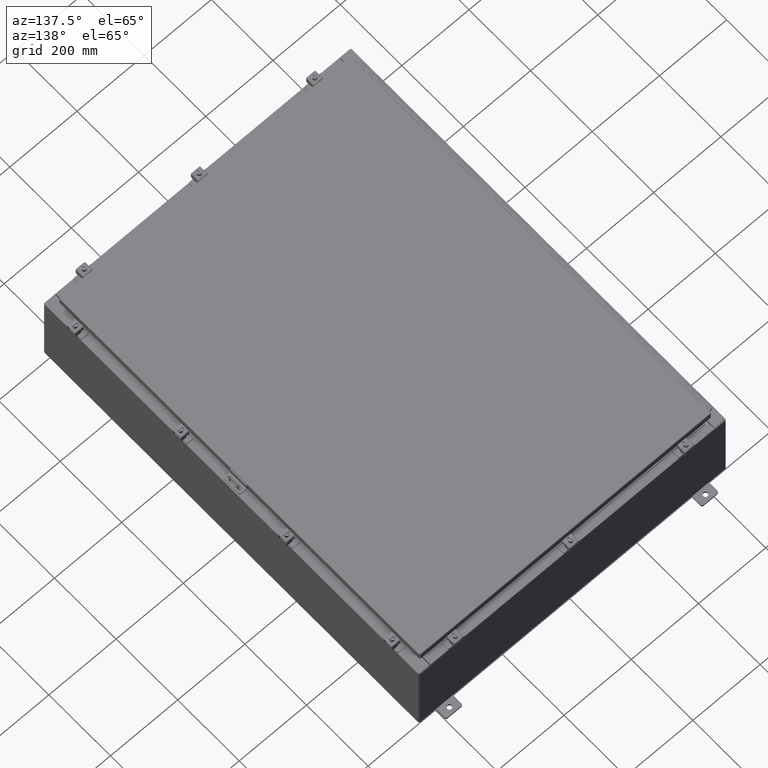
[diagram: clean part render]
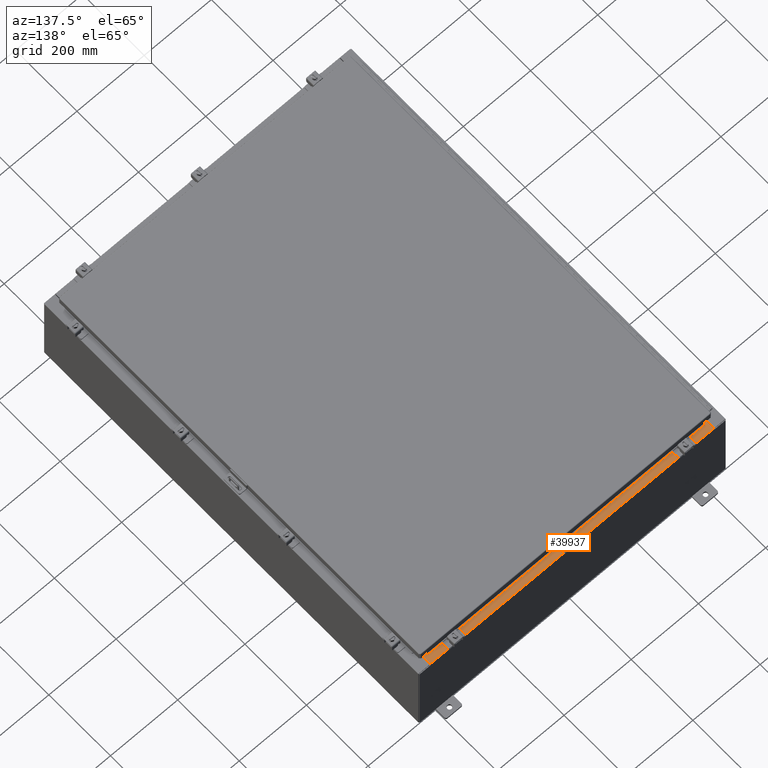
[diagram: same view with one face highlighted and labeled with its STEP entity id]
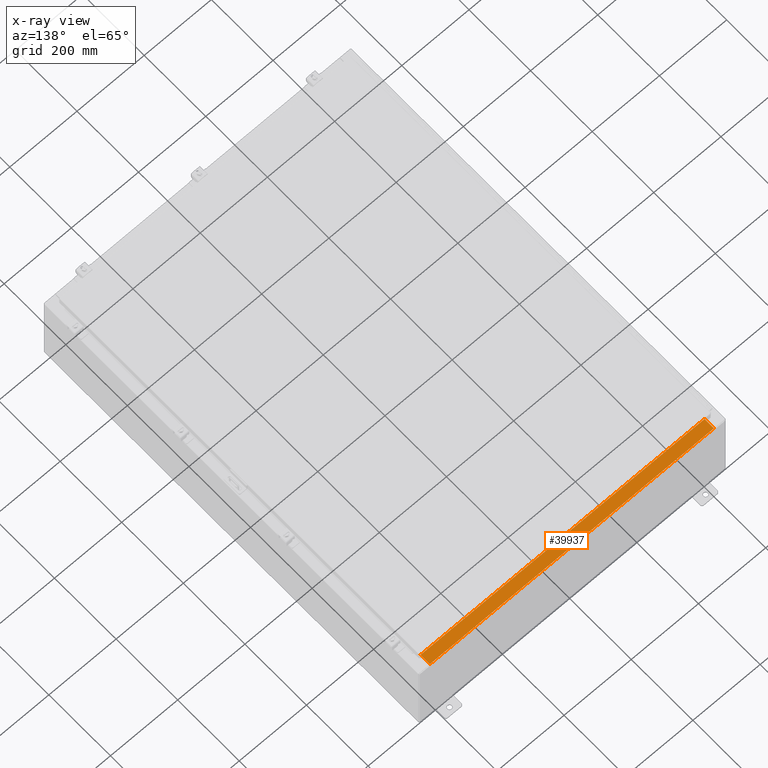
[diagram: x-ray of the same camera — body ghosted, the highlighted face saturated]
A machine part, auxiliary view. The second image highlights one B-rep face of the part: STEP entity #39937.
The next image is the same camera in x-ray: the body ghosted, the highlighted face saturated — about 0% of this face is hidden behind the body in this view.
In plain terms, the highlighted planar face has unit normal (0, 0, 1).
Its self-contained STEP definition (entity closure, byte-faithful):
#1491 = DIRECTION ( 'NONE',  ( 0.0000000000000000000, -1.000000000000000000, 3.566381192773190000E-015 ) ) ;
#5858 = DIRECTION ( 'NONE',  ( -1.000000000000000000, -3.284023746380717400E-017, 1.171208052571274300E-031 ) ) ;
#10295 = VERTEX_POINT ( 'NONE', #20275 ) ;
#10631 = EDGE_CURVE ( 'NONE', #46634, #10295, #15497, .T. ) ;
#10764 = VECTOR ( 'NONE', #18326, 39.37007874015748100 ) ;
#10844 = EDGE_CURVE ( 'NONE', #46634, #44702, #46793, .T. ) ;
#11735 = ORIENTED_EDGE ( 'NONE', *, *, #27420, .F. ) ;
#15497 = LINE ( 'NONE', #39072, #25267 ) ;
#15849 = CARTESIAN_POINT ( 'NONE',  ( 16.63720000000000000, -1.300299999999999800, 5.000000000000004400 ) ) ;
#16671 = DIRECTION ( 'NONE',  ( -1.000000000000000000, 0.0000000000000000000, 0.0000000000000000000 ) ) ;
#18326 = DIRECTION ( 'NONE',  ( -0.0000000000000000000, 1.000000000000000000, -3.566381192773190000E-015 ) ) ;
#19985 = VERTEX_POINT ( 'NONE', #49507 ) ;
#20227 = VECTOR ( 'NONE', #16671, 39.37007874015748100 ) ;
#20275 = CARTESIAN_POINT ( 'NONE',  ( -16.63720000000000000, -0.08770000000000081900, 5.000000000000000000 ) ) ;
#21537 = LINE ( 'NONE', #45843, #20227 ) ;
#21720 = ORIENTED_EDGE ( 'NONE', *, *, #34104, .F. ) ;
#22141 = CARTESIAN_POINT ( 'NONE',  ( 0.0000000000000000000, 1.782631094477737600E-014, 5.000000000000000000 ) ) ;
#24588 = AXIS2_PLACEMENT_3D ( 'NONE', #22141, #26380, #1491 ) ;
#25267 = VECTOR ( 'NONE', #5858, 39.37007874015748100 ) ;
#26380 = DIRECTION ( 'NONE',  ( 0.0000000000000000000, 3.566381192773190000E-015, 1.000000000000000000 ) ) ;
#27420 = EDGE_CURVE ( 'NONE', #44702, #19985, #21537, .T. ) ;
#28723 = FACE_OUTER_BOUND ( 'NONE', #33838, .T. ) ;
#30744 = ORIENTED_EDGE ( 'NONE', *, *, #10631, .T. ) ;
#32827 = CARTESIAN_POINT ( 'NONE',  ( 16.63720000000000000, -1.287299999999999900, 5.000000000000004400 ) ) ;
#33838 = EDGE_LOOP ( 'NONE', ( #21720, #11735, #51051, #30744 ) ) ;
#34104 = EDGE_CURVE ( 'NONE', #19985, #10295, #53816, .T. ) ;
#39072 = CARTESIAN_POINT ( 'NONE',  ( 2.880088825576501100E-018, -0.08770000000000081900, 5.000000000000000000 ) ) ;
#39937 = ADVANCED_FACE ( 'NONE', ( #28723 ), #47181, .T. ) ;
#44702 = VERTEX_POINT ( 'NONE', #32827 ) ;
#45047 = DIRECTION ( 'NONE',  ( -0.0000000000000000000, -1.000000000000000000, 3.566381192773190000E-015 ) ) ;
#45843 = CARTESIAN_POINT ( 'NONE',  ( 16.63720000000000400, -1.287299999999999900, 5.000000000000002700 ) ) ;
#46634 = VERTEX_POINT ( 'NONE', #52013 ) ;
#46793 = LINE ( 'NONE', #15849, #48065 ) ;
#47181 = PLANE ( 'NONE',  #24588 ) ;
#47516 = CARTESIAN_POINT ( 'NONE',  ( -16.63720000000000000, -0.07469999999999973900, 5.000000000000000000 ) ) ;
#48065 = VECTOR ( 'NONE', #45047, 39.37007874015748100 ) ;
#49507 = CARTESIAN_POINT ( 'NONE',  ( -16.63720000000000000, -1.287299999999999200, 5.000000000000004400 ) ) ;
#51051 = ORIENTED_EDGE ( 'NONE', *, *, #10844, .F. ) ;
#52013 = CARTESIAN_POINT ( 'NONE',  ( 16.63720000000000400, -0.08770000000000047200, 5.000000000000000000 ) ) ;
#53816 = LINE ( 'NONE', #47516, #10764 ) ;